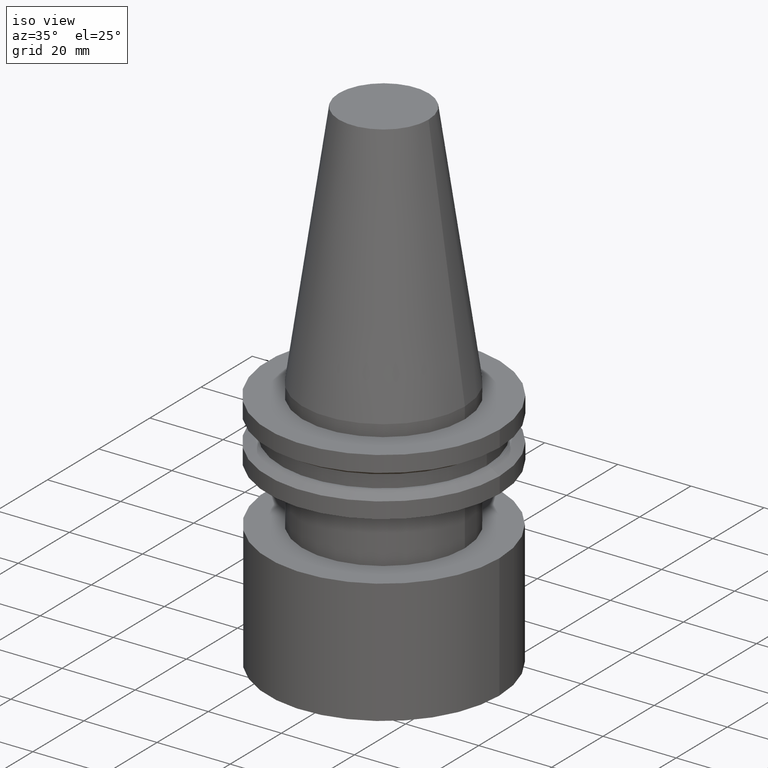
[diagram: clean part render]
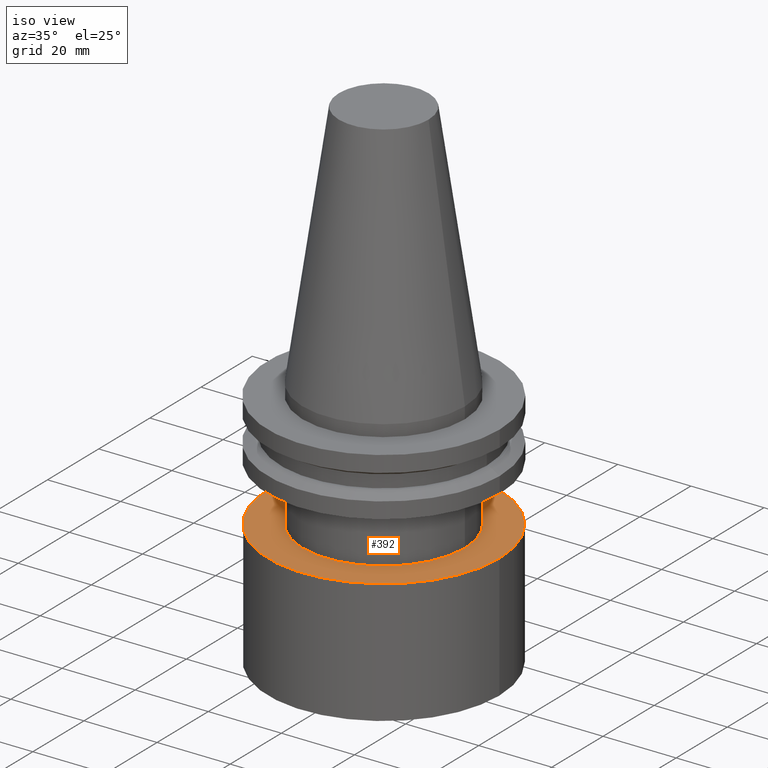
[diagram: same view with one face highlighted and labeled with its STEP entity id]
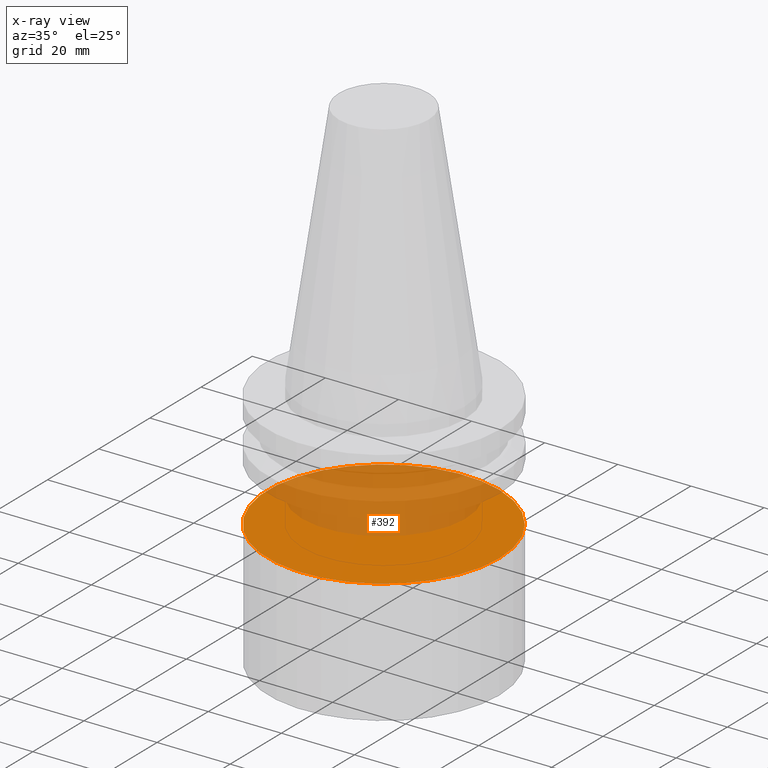
[diagram: x-ray of the same camera — body ghosted, the highlighted face saturated]
A machine part, iso view. The second image highlights one B-rep face of the part: STEP entity #392.
The next image is the same camera in x-ray: the body ghosted, the highlighted face saturated — about 45% of this face is hidden behind the body in this view.
In plain terms, the highlighted planar face has unit normal (0, 0, -1).
Its self-contained STEP definition (entity closure, byte-faithful):
#16 = EDGE_CURVE ( 'NONE', #187, #187, #314, .T. ) ;
#90 = CARTESIAN_POINT ( 'NONE',  ( 31.63500000000000512, 0.000000000000000000, -35.04999999999999716 ) ) ;
#94 = PLANE ( 'NONE',  #238 ) ;
#182 = FACE_OUTER_BOUND ( 'NONE', #353, .T. ) ;
#187 = VERTEX_POINT ( 'NONE', #90 ) ;
#227 = CARTESIAN_POINT ( 'NONE',  ( 0.000000000000000000, 0.000000000000000000, -35.04999999999999716 ) ) ;
#238 = AXIS2_PLACEMENT_3D ( 'NONE', #308, #305, #344 ) ;
#253 = ORIENTED_EDGE ( 'NONE', *, *, #16, .T. ) ;
#259 = DIRECTION ( 'NONE',  ( 1.000000000000000000, 0.000000000000000000, 0.000000000000000000 ) ) ;
#305 = DIRECTION ( 'NONE',  ( 0.000000000000000000, 0.000000000000000000, -1.000000000000000000 ) ) ;
#308 = CARTESIAN_POINT ( 'NONE',  ( 0.000000000000000000, 0.000000000000000000, -35.04999999999999716 ) ) ;
#314 = CIRCLE ( 'NONE', #326, 31.63500000000000512 ) ;
#326 = AXIS2_PLACEMENT_3D ( 'NONE', #227, #378, #259 ) ;
#344 = DIRECTION ( 'NONE',  ( -1.000000000000000000, 0.000000000000000000, -0.000000000000000000 ) ) ;
#353 = EDGE_LOOP ( 'NONE', ( #253 ) ) ;
#378 = DIRECTION ( 'NONE',  ( -0.000000000000000000, -0.000000000000000000, 1.000000000000000000 ) ) ;
#392 = ADVANCED_FACE ( 'NONE', ( #182 ), #94, .F. ) ;